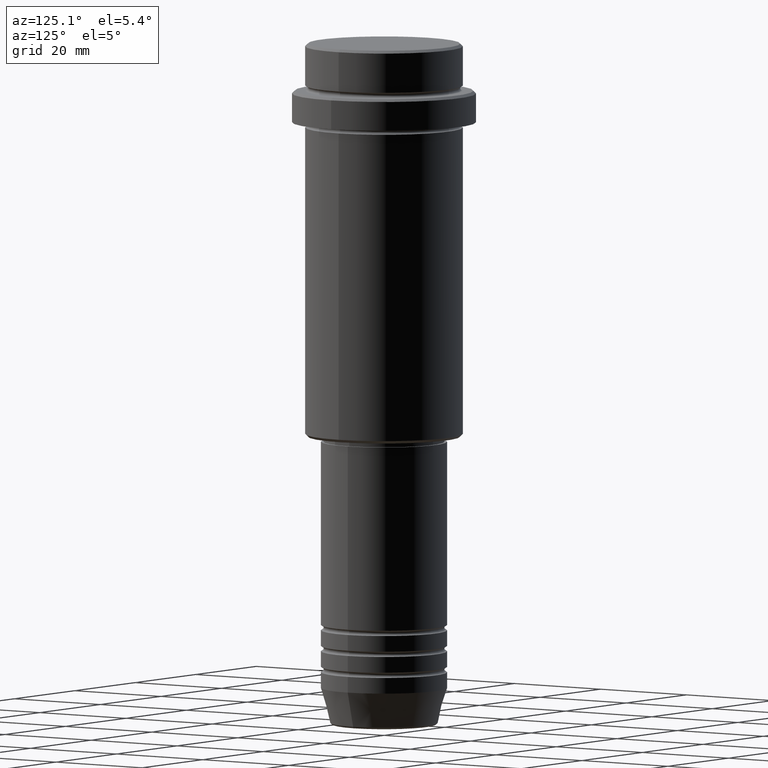
[diagram: clean part render]
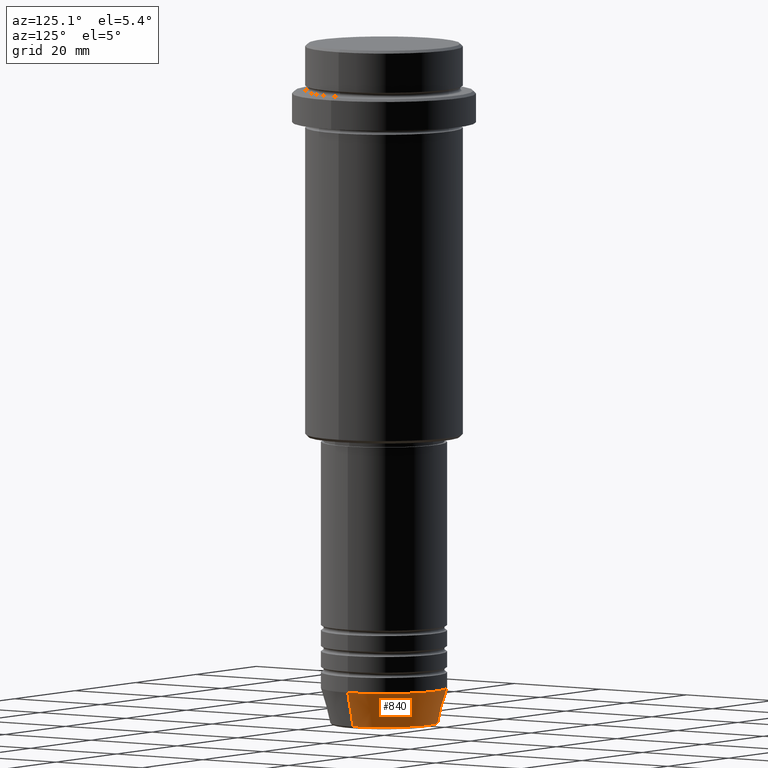
[diagram: same view with one face highlighted and labeled with its STEP entity id]
A machine part, auxiliary view. The second image highlights one B-rep face of the part: STEP entity #840.
In plain terms, the highlighted conical surface has half-angle 15 deg.
Its self-contained STEP definition (entity closure, byte-faithful):
#16 = DIRECTION ( 'NONE',  ( 1.000000000000000000, 0.000000000000000000, 0.000000000000000000 ) ) ;
#69 = AXIS2_PLACEMENT_3D ( 'NONE', #941, #166, #604 ) ;
#166 = DIRECTION ( 'NONE',  ( -0.000000000000000000, -0.000000000000000000, 1.000000000000000000 ) ) ;
#171 = EDGE_CURVE ( 'NONE', #1378, #384, #495, .T. ) ;
#207 = AXIS2_PLACEMENT_3D ( 'NONE', #1315, #1105, #16 ) ;
#227 = FACE_OUTER_BOUND ( 'NONE', #650, .T. ) ;
#240 = ORIENTED_EDGE ( 'NONE', *, *, #563, .T. ) ;
#242 = LINE ( 'NONE', #1109, #984 ) ;
#279 = CONICAL_SURFACE ( 'NONE', #207, 12.00000000000000000, 0.2617993877991500740 ) ;
#356 = CARTESIAN_POINT ( 'NONE',  ( -10.22365507213718949, 1.360806402472382744E-15, -129.6294095225512422 ) ) ;
#357 = CARTESIAN_POINT ( 'NONE',  ( 10.22365507213718949, 0.000000000000000000, -129.6294095225512422 ) ) ;
#384 = VERTEX_POINT ( 'NONE', #1394 ) ;
#451 = VERTEX_POINT ( 'NONE', #357 ) ;
#481 = CARTESIAN_POINT ( 'NONE',  ( 12.00000000000000000, 0.000000000000000000, -123.0000000000000000 ) ) ;
#495 = CIRCLE ( 'NONE', #69, 12.00000000000000000 ) ;
#542 = AXIS2_PLACEMENT_3D ( 'NONE', #1126, #1018, #1110 ) ;
#543 = DIRECTION ( 'NONE',  ( 0.2588190451025213501, 0.000000000000000000, 0.9659258262890680902 ) ) ;
#554 = LINE ( 'NONE', #901, #1179 ) ;
#563 = EDGE_CURVE ( 'NONE', #1284, #384, #554, .T. ) ;
#604 = DIRECTION ( 'NONE',  ( 1.000000000000000000, 0.000000000000000000, 0.000000000000000000 ) ) ;
#650 = EDGE_LOOP ( 'NONE', ( #967, #240, #1332, #699 ) ) ;
#653 = DIRECTION ( 'NONE',  ( -0.2588190451025213501, 3.169619151431772337E-17, 0.9659258262890680902 ) ) ;
#657 = CIRCLE ( 'NONE', #542, 10.22365507213718949 ) ;
#687 = EDGE_CURVE ( 'NONE', #451, #1284, #657, .T. ) ;
#699 = ORIENTED_EDGE ( 'NONE', *, *, #940, .F. ) ;
#840 = ADVANCED_FACE ( 'NONE', ( #227 ), #279, .T. ) ;
#901 = CARTESIAN_POINT ( 'NONE',  ( -12.00000000000000000, 1.469576158976823947E-15, -123.0000000000000000 ) ) ;
#940 = EDGE_CURVE ( 'NONE', #451, #1378, #242, .T. ) ;
#941 = CARTESIAN_POINT ( 'NONE',  ( 0.000000000000000000, 0.000000000000000000, -123.0000000000000000 ) ) ;
#967 = ORIENTED_EDGE ( 'NONE', *, *, #687, .T. ) ;
#984 = VECTOR ( 'NONE', #543, 1000.000000000000000 ) ;
#1018 = DIRECTION ( 'NONE',  ( -0.000000000000000000, -0.000000000000000000, 1.000000000000000000 ) ) ;
#1105 = DIRECTION ( 'NONE',  ( -0.000000000000000000, -0.000000000000000000, 1.000000000000000000 ) ) ;
#1109 = CARTESIAN_POINT ( 'NONE',  ( 12.00000000000000000, 0.000000000000000000, -123.0000000000000000 ) ) ;
#1110 = DIRECTION ( 'NONE',  ( 1.000000000000000000, 0.000000000000000000, 0.000000000000000000 ) ) ;
#1126 = CARTESIAN_POINT ( 'NONE',  ( 0.000000000000000000, 0.000000000000000000, -129.6294095225512422 ) ) ;
#1179 = VECTOR ( 'NONE', #653, 1000.000000000000000 ) ;
#1284 = VERTEX_POINT ( 'NONE', #356 ) ;
#1315 = CARTESIAN_POINT ( 'NONE',  ( 0.000000000000000000, 0.000000000000000000, -123.0000000000000000 ) ) ;
#1332 = ORIENTED_EDGE ( 'NONE', *, *, #171, .F. ) ;
#1378 = VERTEX_POINT ( 'NONE', #481 ) ;
#1394 = CARTESIAN_POINT ( 'NONE',  ( -12.00000000000000000, 1.469576158976823947E-15, -123.0000000000000000 ) ) ;